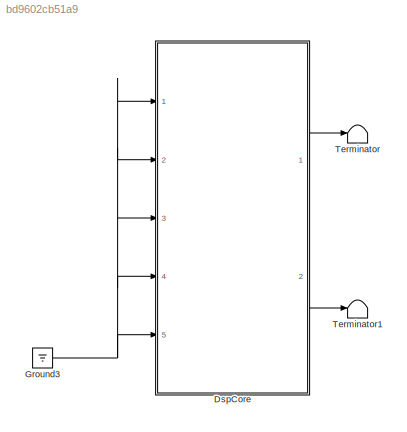
MODEL slx_bd9602cb51a9
KIND model
CONFIG AbsTol = auto
CONFIG FixedStep = auto
CONFIG MaxStep = 10e-6
CONFIG MinStep = auto
CONFIG RelTol = 1e-3
CONFIG SampleTimeConstraint = Unconstrained
CONFIG Solver = ode45
CONFIG SolverMode = Auto
CONFIG SolverName = ode45
CONFIG StartTime = 0.0
CONFIG StopTime = 1
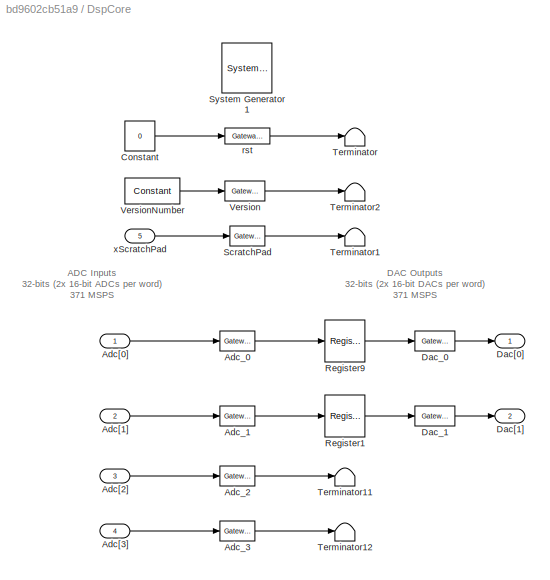
BLOCK [SubSystem] DspCore
  Ports = [5, 2]
  RequestExecContextInheritance = off
  Variant = off
BLOCK [Reference] DspCore/ System Generator1  REF=xbsIndex_r4/ System Generator
  AttributesFormatString = System\nGenerator
  Ports = []
  SourceBlock = xbsIndex_r4/ System Generator
  SourceType = Xilinx System Generator Block
  Tag = genX
  UserDataPersistent = on
BLOCK [Inport] DspCore/Adc[0]
  IconDisplay = Port number
BLOCK [Inport] DspCore/Adc[1]
  IconDisplay = Port number
  Port = 2
BLOCK [Inport] DspCore/Adc[2]
  IconDisplay = Port number
  Port = 3
BLOCK [Inport] DspCore/Adc[3]
  IconDisplay = Port number
  Port = 4
BLOCK [Reference] DspCore/Adc_0  REF=xbsIndex_r4/Gateway In
  Ports = [1, 1]
  SourceBlock = xbsIndex_r4/Gateway In
  SourceType = Xilinx Gateway In Block
BLOCK [Reference] DspCore/Adc_1  REF=xbsIndex_r4/Gateway In
  Ports = [1, 1]
  SourceBlock = xbsIndex_r4/Gateway In
  SourceType = Xilinx Gateway In Block
BLOCK [Reference] DspCore/Adc_2  REF=xbsIndex_r4/Gateway In
  Ports = [1, 1]
  SourceBlock = xbsIndex_r4/Gateway In
  SourceType = Xilinx Gateway In Block
BLOCK [Reference] DspCore/Adc_3  REF=xbsIndex_r4/Gateway In
  Ports = [1, 1]
  SourceBlock = xbsIndex_r4/Gateway In
  SourceType = Xilinx Gateway In Block
BLOCK [Constant] DspCore/Constant
  Value = 0
BLOCK [Outport] DspCore/Dac[0]
  IconDisplay = Port number
BLOCK [Outport] DspCore/Dac[1]
  IconDisplay = Port number
  Port = 2
BLOCK [Reference] DspCore/Dac_0  REF=xbsIndex_r4/Gateway Out
  Ports = [1, 1]
  SourceBlock = xbsIndex_r4/Gateway Out
  SourceType = Xilinx Gateway Out Block
BLOCK [Reference] DspCore/Dac_1  REF=xbsIndex_r4/Gateway Out
  Ports = [1, 1]
  SourceBlock = xbsIndex_r4/Gateway Out
  SourceType = Xilinx Gateway Out Block
BLOCK [Reference] DspCore/Register1  REF=xbsIndex_r4/Register
  Ports = [1, 1]
  SourceBlock = xbsIndex_r4/Register
  SourceType = Xilinx Register Block
BLOCK [Reference] DspCore/Register9  REF=xbsIndex_r4/Register
  Ports = [1, 1]
  SourceBlock = xbsIndex_r4/Register
  SourceType = Xilinx Register Block
BLOCK [Reference] DspCore/ScratchPad  REF=xbsIndex_r4/Gateway In
  Ports = [1, 1]
  SourceBlock = xbsIndex_r4/Gateway In
  SourceType = Xilinx Gateway In Block
BLOCK [Terminator] DspCore/Terminator
BLOCK [Terminator] DspCore/Terminator1
BLOCK [Terminator] DspCore/Terminator11
BLOCK [Terminator] DspCore/Terminator12
BLOCK [Terminator] DspCore/Terminator2
BLOCK [Reference] DspCore/Version  REF=xbsIndex_r4/Gateway Out
  Ports = [1, 1]
  SourceBlock = xbsIndex_r4/Gateway Out
  SourceType = Xilinx Gateway Out Block
BLOCK [Reference] DspCore/VersionNumber  REF=xbsIndex_r4/Constant
  Ports = [0, 1]
  SourceBlock = xbsIndex_r4/Constant
  SourceType = Xilinx Constant Block Block
BLOCK [Reference] DspCore/rst  REF=xbsIndex_r4/Gateway In
  Ports = [1, 1]
  SourceBlock = xbsIndex_r4/Gateway In
  SourceType = Xilinx Gateway In Block
BLOCK [Inport] DspCore/xScratchPad
  IconDisplay = Port number
  Port = 5
BLOCK [Ground] Ground3
BLOCK [Terminator] Terminator
BLOCK [Terminator] Terminator1
ANNOTATION DspCore: ADC Inputs 32-bits (2x 16-bit ADCs per word) 371 MSPS
ANNOTATION DspCore: DAC Outputs 32-bits (2x 16-bit DACs per word) 371 MSPS
LINE DspCore/Adc[0]:1 -> DspCore/Adc_0:1
LINE DspCore/Adc[1]:1 -> DspCore/Adc_1:1
LINE DspCore/Adc[2]:1 -> DspCore/Adc_2:1
LINE DspCore/Adc[3]:1 -> DspCore/Adc_3:1
LINE DspCore/Adc_0:1 -> DspCore/Register9:1
LINE DspCore/Adc_1:1 -> DspCore/Register1:1
LINE DspCore/Adc_2:1 -> DspCore/Terminator11:1
LINE DspCore/Adc_3:1 -> DspCore/Terminator12:1
LINE DspCore/Constant:1 -> DspCore/rst:1
LINE DspCore/Dac_0:1 -> DspCore/Dac[0]:1
LINE DspCore/Dac_1:1 -> DspCore/Dac[1]:1
LINE DspCore/Register1:1 -> DspCore/Dac_1:1
LINE DspCore/Register9:1 -> DspCore/Dac_0:1
LINE DspCore/ScratchPad:1 -> DspCore/Terminator1:1
LINE DspCore/Version:1 -> DspCore/Terminator2:1
LINE DspCore/VersionNumber:1 -> DspCore/Version:1
LINE DspCore/rst:1 -> DspCore/Terminator:1
LINE DspCore/xScratchPad:1 -> DspCore/ScratchPad:1
LINE DspCore:1 -> Terminator:1
LINE DspCore:2 -> Terminator1:1
NET Ground3:1 -> DspCore:1, DspCore:2, DspCore:3, DspCore:4, DspCore:5
note: NET lines group one-source signal fan-out (src -> all destinations, sorted); 1:1 wires keep LINE
